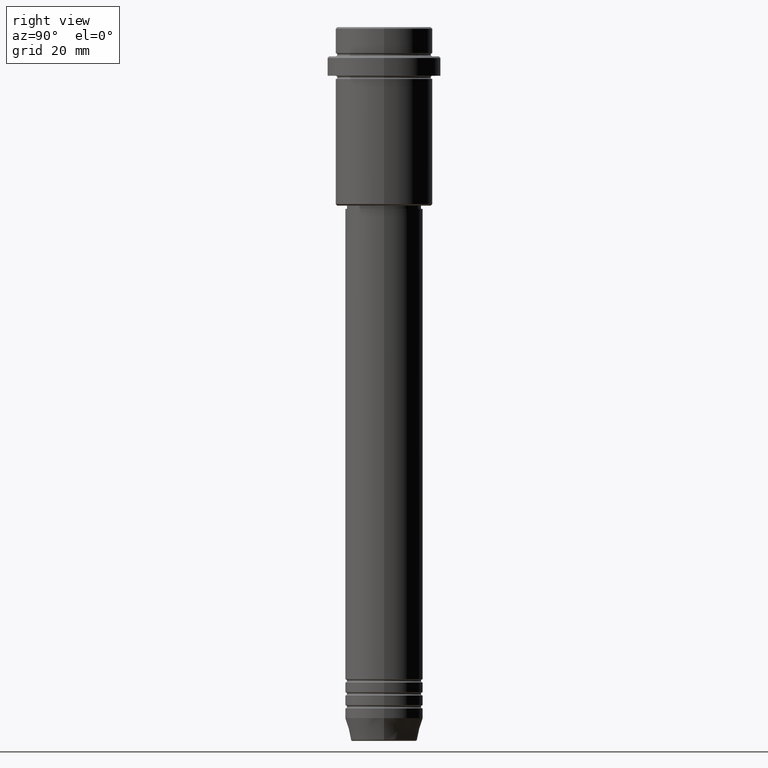
[diagram: clean part render]
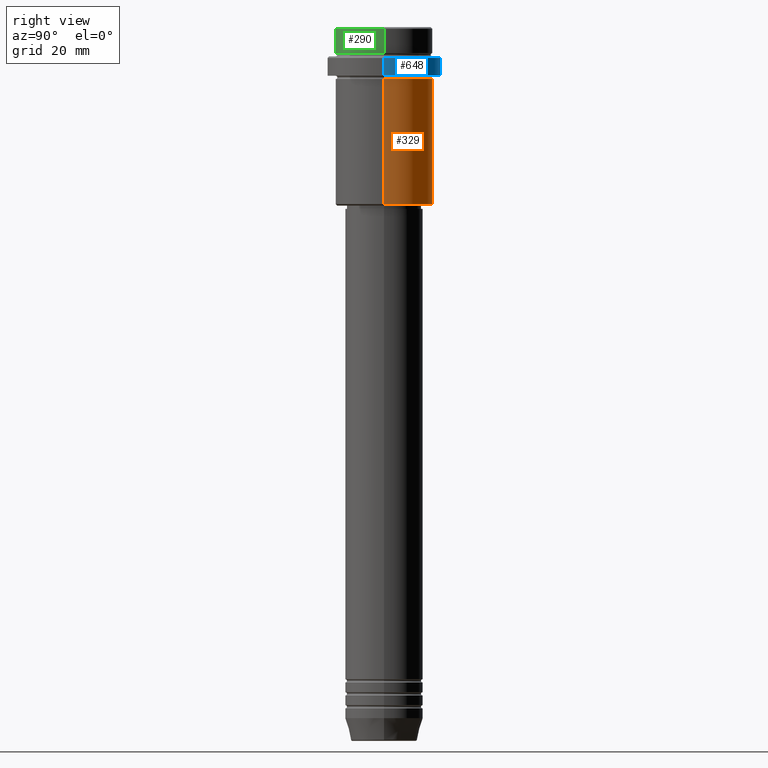
[diagram: same view with three faces highlighted in distinct colors, each labeled with its STEP entity id]
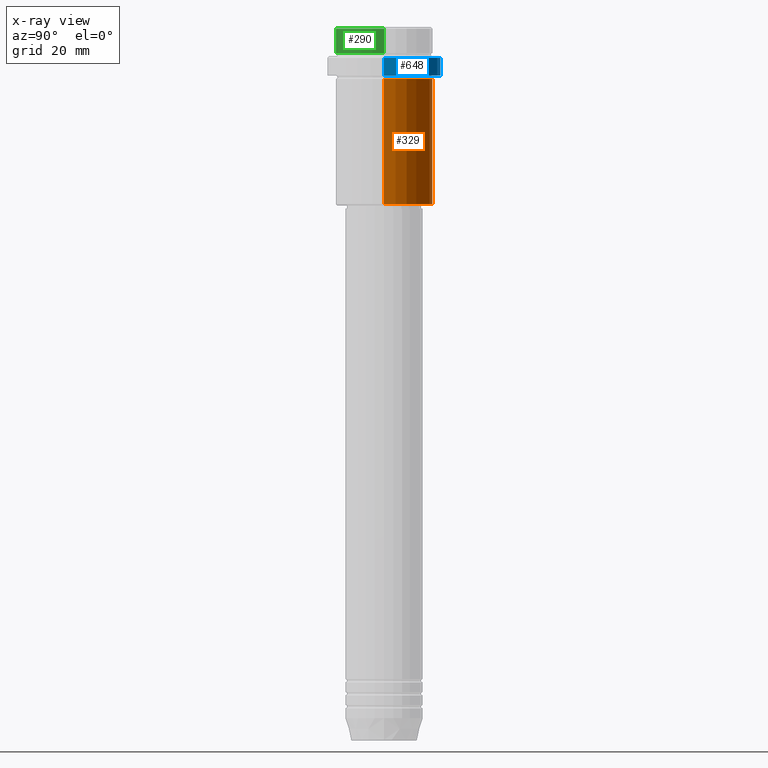
[diagram: x-ray of the same camera — body ghosted, the three highlighted faces saturated]
A machine part, right view with three faces highlighted in distinct colors.
The next image is the same camera in x-ray (body ghosted, the three faces saturated) — at least one of them is partly hidden behind the body in this view.
Their STEP definitions:

[orange] entity #329 — the highlighted cylindrical surface (partial cylindrical patch) has radius 15 mm, axis along (-0, -0, 1).
#61 = ORIENTED_EDGE ( 'NONE', *, *, #1316, .T. ) ;
#64 = LINE ( 'NONE', #501, #1396 ) ;
#73 = DIRECTION ( 'NONE',  ( 1.000000000000000000, 0.000000000000000000, 0.000000000000000000 ) ) ;
#79 = AXIS2_PLACEMENT_3D ( 'NONE', #504, #1271, #73 ) ;
#90 = LINE ( 'NONE', #1169, #567 ) ;
#138 = EDGE_CURVE ( 'NONE', #1099, #1364, #64, .T. ) ;
#151 = CARTESIAN_POINT ( 'NONE',  ( 0.000000000000000000, 0.000000000000000000, -54.50000000000003553 ) ) ;
#175 = AXIS2_PLACEMENT_3D ( 'NONE', #151, #465, #782 ) ;
#288 = ORIENTED_EDGE ( 'NONE', *, *, #495, .F. ) ;
#289 = AXIS2_PLACEMENT_3D ( 'NONE', #955, #1292, #755 ) ;
#329 = ADVANCED_FACE ( 'NONE', ( #673 ), #690, .T. ) ;
#355 = ORIENTED_EDGE ( 'NONE', *, *, #138, .F. ) ;
#418 = EDGE_LOOP ( 'NONE', ( #61, #1371, #288, #355 ) ) ;
#465 = DIRECTION ( 'NONE',  ( -0.000000000000000000, -0.000000000000000000, 1.000000000000000000 ) ) ;
#476 = EDGE_CURVE ( 'NONE', #1215, #1059, #90, .T. ) ;
#495 = EDGE_CURVE ( 'NONE', #1364, #1059, #1227, .T. ) ;
#501 = CARTESIAN_POINT ( 'NONE',  ( 15.00000000000000000, 0.000000000000000000, 0.000000000000000000 ) ) ;
#504 = CARTESIAN_POINT ( 'NONE',  ( 0.000000000000000000, 0.000000000000000000, 0.000000000000000000 ) ) ;
#567 = VECTOR ( 'NONE', #730, 1000.000000000000000 ) ;
#673 = FACE_OUTER_BOUND ( 'NONE', #418, .T. ) ;
#690 = CYLINDRICAL_SURFACE ( 'NONE', #79, 15.00000000000000000 ) ;
#730 = DIRECTION ( 'NONE',  ( -0.000000000000000000, -0.000000000000000000, 1.000000000000000000 ) ) ;
#755 = DIRECTION ( 'NONE',  ( 1.000000000000000000, 0.000000000000000000, 0.000000000000000000 ) ) ;
#782 = DIRECTION ( 'NONE',  ( -1.000000000000000000, 0.000000000000000000, 0.000000000000000000 ) ) ;
#893 = CARTESIAN_POINT ( 'NONE',  ( 15.00000000000000178, 0.000000000000000000, -16.00000000000000000 ) ) ;
#934 = CARTESIAN_POINT ( 'NONE',  ( 15.00000000000000000, 0.000000000000000000, -54.50000000000003553 ) ) ;
#955 = CARTESIAN_POINT ( 'NONE',  ( 0.000000000000000000, 0.000000000000000000, -16.00000000000000000 ) ) ;
#1059 = VERTEX_POINT ( 'NONE', #1379 ) ;
#1091 = CIRCLE ( 'NONE', #175, 15.00000000000000000 ) ;
#1099 = VERTEX_POINT ( 'NONE', #934 ) ;
#1169 = CARTESIAN_POINT ( 'NONE',  ( -15.00000000000000000, 1.836970198721029589E-15, 0.000000000000000000 ) ) ;
#1215 = VERTEX_POINT ( 'NONE', #1413 ) ;
#1227 = CIRCLE ( 'NONE', #289, 15.00000000000000178 ) ;
#1241 = DIRECTION ( 'NONE',  ( -0.000000000000000000, -0.000000000000000000, 1.000000000000000000 ) ) ;
#1271 = DIRECTION ( 'NONE',  ( -0.000000000000000000, -0.000000000000000000, 1.000000000000000000 ) ) ;
#1292 = DIRECTION ( 'NONE',  ( -0.000000000000000000, -0.000000000000000000, 1.000000000000000000 ) ) ;
#1316 = EDGE_CURVE ( 'NONE', #1099, #1215, #1091, .T. ) ;
#1364 = VERTEX_POINT ( 'NONE', #893 ) ;
#1371 = ORIENTED_EDGE ( 'NONE', *, *, #476, .T. ) ;
#1379 = CARTESIAN_POINT ( 'NONE',  ( -15.00000000000000355, 1.836970198721029983E-15, -16.00000000000000000 ) ) ;
#1396 = VECTOR ( 'NONE', #1241, 1000.000000000000000 ) ;
#1413 = CARTESIAN_POINT ( 'NONE',  ( -15.00000000000000000, 1.836970198721029589E-15, -54.50000000000003553 ) ) ;

[blue] entity #648 — the highlighted cylindrical surface (partial cylindrical patch) has radius 17.5 mm, axis along (-0, -0, 1).
#102 = CARTESIAN_POINT ( 'NONE',  ( -17.50000000000000000, 2.143131898507868248E-15, -9.500000000000026645 ) ) ;
#118 = CARTESIAN_POINT ( 'NONE',  ( 0.000000000000000000, 0.000000000000000000, -15.00000000000000000 ) ) ;
#126 = EDGE_CURVE ( 'NONE', #1180, #769, #1022, .T. ) ;
#129 = CYLINDRICAL_SURFACE ( 'NONE', #1230, 17.50000000000000000 ) ;
#173 = AXIS2_PLACEMENT_3D ( 'NONE', #1190, #989, #768 ) ;
#233 = VERTEX_POINT ( 'NONE', #634 ) ;
#236 = CARTESIAN_POINT ( 'NONE',  ( 0.000000000000000000, 0.000000000000000000, 0.000000000000000000 ) ) ;
#319 = LINE ( 'NONE', #1381, #802 ) ;
#405 = DIRECTION ( 'NONE',  ( -0.000000000000000000, -0.000000000000000000, 1.000000000000000000 ) ) ;
#430 = ORIENTED_EDGE ( 'NONE', *, *, #126, .F. ) ;
#449 = EDGE_LOOP ( 'NONE', ( #1061, #892, #1130, #430 ) ) ;
#610 = CARTESIAN_POINT ( 'NONE',  ( 17.50000000000000000, 0.000000000000000000, 0.000000000000000000 ) ) ;
#634 = CARTESIAN_POINT ( 'NONE',  ( -17.50000000000000000, 2.143131898507868248E-15, -15.00000000000000000 ) ) ;
#640 = CARTESIAN_POINT ( 'NONE',  ( 17.50000000000000000, 0.000000000000000000, -9.500000000000026645 ) ) ;
#648 = ADVANCED_FACE ( 'NONE', ( #881 ), #129, .T. ) ;
#655 = CARTESIAN_POINT ( 'NONE',  ( 17.50000000000000000, 0.000000000000000000, -15.00000000000000000 ) ) ;
#739 = CIRCLE ( 'NONE', #173, 17.50000000000000000 ) ;
#768 = DIRECTION ( 'NONE',  ( 1.000000000000000000, 0.000000000000000000, 0.000000000000000000 ) ) ;
#769 = VERTEX_POINT ( 'NONE', #640 ) ;
#802 = VECTOR ( 'NONE', #405, 1000.000000000000000 ) ;
#837 = EDGE_CURVE ( 'NONE', #233, #863, #319, .T. ) ;
#849 = AXIS2_PLACEMENT_3D ( 'NONE', #118, #856, #973 ) ;
#856 = DIRECTION ( 'NONE',  ( -0.000000000000000000, -0.000000000000000000, 1.000000000000000000 ) ) ;
#863 = VERTEX_POINT ( 'NONE', #102 ) ;
#881 = FACE_OUTER_BOUND ( 'NONE', #449, .T. ) ;
#892 = ORIENTED_EDGE ( 'NONE', *, *, #837, .T. ) ;
#973 = DIRECTION ( 'NONE',  ( 1.000000000000000000, 0.000000000000000000, 0.000000000000000000 ) ) ;
#989 = DIRECTION ( 'NONE',  ( 0.000000000000000000, 0.000000000000000000, -1.000000000000000000 ) ) ;
#996 = DIRECTION ( 'NONE',  ( 1.000000000000000000, 0.000000000000000000, 0.000000000000000000 ) ) ;
#1022 = LINE ( 'NONE', #610, #1185 ) ;
#1037 = DIRECTION ( 'NONE',  ( -0.000000000000000000, -0.000000000000000000, 1.000000000000000000 ) ) ;
#1061 = ORIENTED_EDGE ( 'NONE', *, *, #1209, .T. ) ;
#1130 = ORIENTED_EDGE ( 'NONE', *, *, #1193, .T. ) ;
#1180 = VERTEX_POINT ( 'NONE', #655 ) ;
#1185 = VECTOR ( 'NONE', #1037, 1000.000000000000000 ) ;
#1189 = CIRCLE ( 'NONE', #849, 17.50000000000000000 ) ;
#1190 = CARTESIAN_POINT ( 'NONE',  ( 0.000000000000000000, 0.000000000000000000, -9.500000000000026645 ) ) ;
#1193 = EDGE_CURVE ( 'NONE', #863, #769, #739, .T. ) ;
#1209 = EDGE_CURVE ( 'NONE', #1180, #233, #1189, .T. ) ;
#1230 = AXIS2_PLACEMENT_3D ( 'NONE', #236, #1314, #996 ) ;
#1314 = DIRECTION ( 'NONE',  ( -0.000000000000000000, -0.000000000000000000, 1.000000000000000000 ) ) ;
#1381 = CARTESIAN_POINT ( 'NONE',  ( -17.50000000000000000, 2.143131898507868248E-15, 0.000000000000000000 ) ) ;

[green] entity #290 — the highlighted cylindrical surface (partial cylindrical patch) has radius 15 mm, axis along (-0, -0, 1).
#9 = CARTESIAN_POINT ( 'NONE',  ( 15.00000000000000000, 0.000000000000000000, -0.5000000000000108802 ) ) ;
#14 = DIRECTION ( 'NONE',  ( -0.000000000000000000, -0.000000000000000000, 1.000000000000000000 ) ) ;
#67 = EDGE_CURVE ( 'NONE', #445, #294, #518, .T. ) ;
#149 = DIRECTION ( 'NONE',  ( 1.000000000000000000, 0.000000000000000000, 0.000000000000000000 ) ) ;
#227 = CARTESIAN_POINT ( 'NONE',  ( 0.000000000000000000, 0.000000000000000000, -0.5000000000000108802 ) ) ;
#290 = ADVANCED_FACE ( 'NONE', ( #320 ), #1069, .T. ) ;
#294 = VERTEX_POINT ( 'NONE', #9 ) ;
#320 = FACE_OUTER_BOUND ( 'NONE', #1202, .T. ) ;
#340 = DIRECTION ( 'NONE',  ( -0.000000000000000000, -0.000000000000000000, 1.000000000000000000 ) ) ;
#353 = VERTEX_POINT ( 'NONE', #846 ) ;
#384 = CARTESIAN_POINT ( 'NONE',  ( 15.00000000000000000, 0.000000000000000000, -7.999999999999998224 ) ) ;
#390 = DIRECTION ( 'NONE',  ( -0.000000000000000000, -0.000000000000000000, 1.000000000000000000 ) ) ;
#395 = AXIS2_PLACEMENT_3D ( 'NONE', #227, #1315, #1094 ) ;
#432 = EDGE_CURVE ( 'NONE', #294, #901, #1261, .T. ) ;
#445 = VERTEX_POINT ( 'NONE', #384 ) ;
#456 = AXIS2_PLACEMENT_3D ( 'NONE', #1410, #340, #1333 ) ;
#518 = LINE ( 'NONE', #583, #776 ) ;
#521 = EDGE_CURVE ( 'NONE', #353, #901, #990, .T. ) ;
#554 = EDGE_CURVE ( 'NONE', #353, #445, #1026, .T. ) ;
#559 = CARTESIAN_POINT ( 'NONE',  ( -15.00000000000000000, 1.836970198721029589E-15, 0.000000000000000000 ) ) ;
#561 = CARTESIAN_POINT ( 'NONE',  ( -15.00000000000000000, 1.836970198721029589E-15, -0.5000000000000108802 ) ) ;
#583 = CARTESIAN_POINT ( 'NONE',  ( 15.00000000000000000, 0.000000000000000000, 0.000000000000000000 ) ) ;
#664 = VECTOR ( 'NONE', #14, 1000.000000000000000 ) ;
#672 = ORIENTED_EDGE ( 'NONE', *, *, #67, .T. ) ;
#776 = VECTOR ( 'NONE', #933, 1000.000000000000000 ) ;
#846 = CARTESIAN_POINT ( 'NONE',  ( -15.00000000000000000, 1.836970198721029589E-15, -7.999999999999998224 ) ) ;
#901 = VERTEX_POINT ( 'NONE', #561 ) ;
#933 = DIRECTION ( 'NONE',  ( -0.000000000000000000, -0.000000000000000000, 1.000000000000000000 ) ) ;
#967 = ORIENTED_EDGE ( 'NONE', *, *, #432, .T. ) ;
#990 = LINE ( 'NONE', #559, #664 ) ;
#1026 = CIRCLE ( 'NONE', #1372, 15.00000000000000000 ) ;
#1069 = CYLINDRICAL_SURFACE ( 'NONE', #456, 15.00000000000000000 ) ;
#1094 = DIRECTION ( 'NONE',  ( 1.000000000000000000, 0.000000000000000000, 0.000000000000000000 ) ) ;
#1202 = EDGE_LOOP ( 'NONE', ( #1414, #1218, #672, #967 ) ) ;
#1218 = ORIENTED_EDGE ( 'NONE', *, *, #554, .T. ) ;
#1261 = CIRCLE ( 'NONE', #395, 15.00000000000000000 ) ;
#1315 = DIRECTION ( 'NONE',  ( 0.000000000000000000, 0.000000000000000000, -1.000000000000000000 ) ) ;
#1333 = DIRECTION ( 'NONE',  ( 1.000000000000000000, 0.000000000000000000, 0.000000000000000000 ) ) ;
#1366 = CARTESIAN_POINT ( 'NONE',  ( 0.000000000000000000, 0.000000000000000000, -7.999999999999998224 ) ) ;
#1372 = AXIS2_PLACEMENT_3D ( 'NONE', #1366, #390, #149 ) ;
#1410 = CARTESIAN_POINT ( 'NONE',  ( 0.000000000000000000, 0.000000000000000000, 0.000000000000000000 ) ) ;
#1414 = ORIENTED_EDGE ( 'NONE', *, *, #521, .F. ) ;